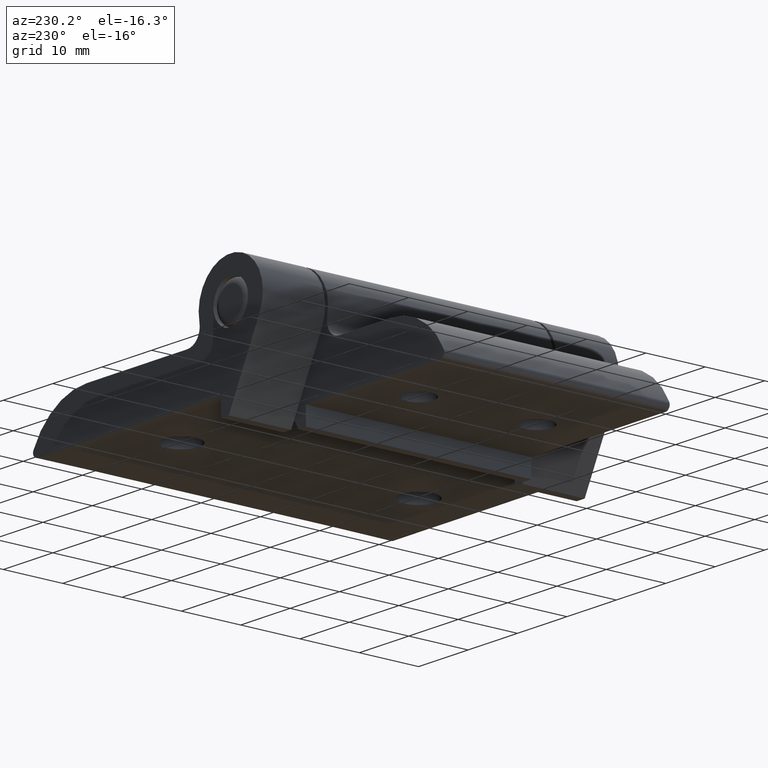
[diagram: clean part render]
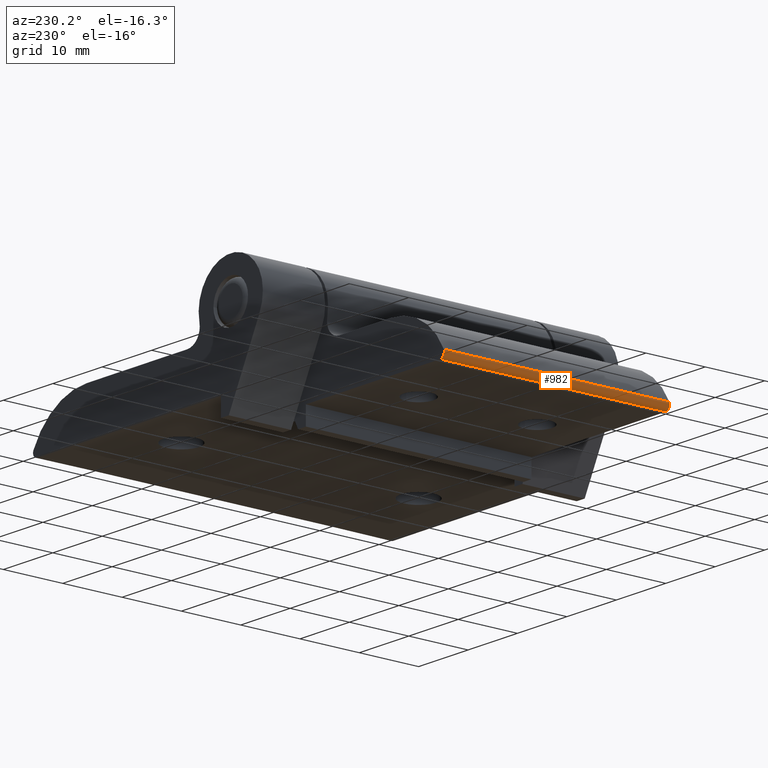
[diagram: same view with one face highlighted and labeled with its STEP entity id]
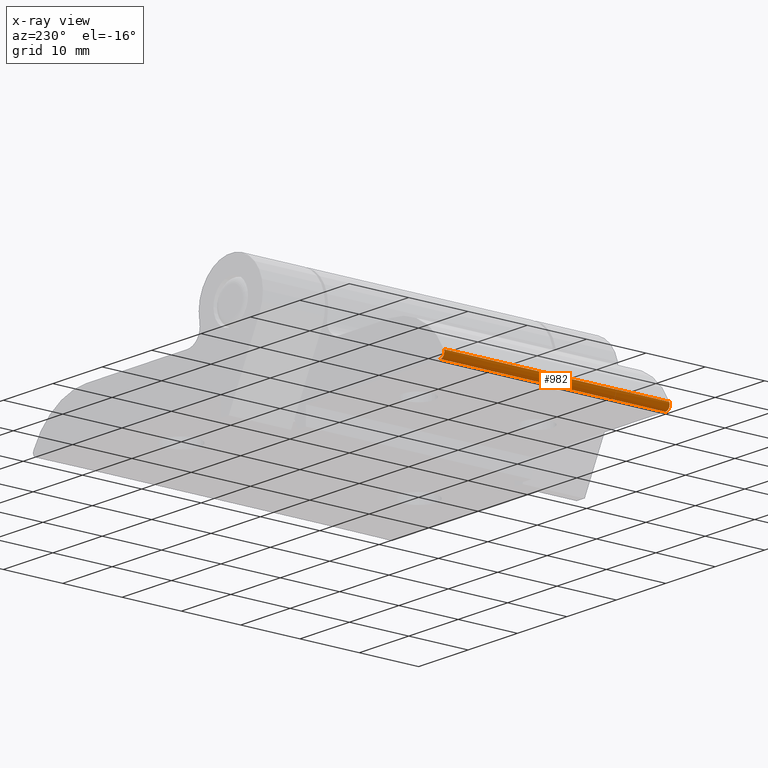
[diagram: x-ray of the same camera — body ghosted, the highlighted face saturated]
A machine part, auxiliary view. The second image highlights one B-rep face of the part: STEP entity #982.
The next image is the same camera in x-ray: the body ghosted, the highlighted face saturated — about 0% of this face is hidden behind the body in this view.
In plain terms, the highlighted face is a freeform B-spline surface patch.
Its self-contained STEP definition (entity closure, byte-faithful):
#43=B_SPLINE_CURVE_WITH_KNOTS('',3,(#1789,#1790,#1791,#1792,#1793,#1794),
 .UNSPECIFIED.,.F.,.F.,(4,1,1,4),(0.22820234633416,0.285714285714286,0.571428571428571,
1.),.UNSPECIFIED.);
#44=B_SPLINE_CURVE_WITH_KNOTS('',3,(#1796,#1797,#1798,#1799),
 .UNSPECIFIED.,.F.,.F.,(4,4),(-3.8,0.),.UNSPECIFIED.);
#45=B_SPLINE_CURVE_WITH_KNOTS('',3,(#1801,#1802,#1803,#1804,#1805,#1806),
 .UNSPECIFIED.,.F.,.F.,(4,1,1,4),(-1.,-0.571428571428571,-0.285714285714286,
-0.228202346334165),.UNSPECIFIED.);
#46=B_SPLINE_CURVE_WITH_KNOTS('',3,(#1808,#1809,#1810,#1811),
 .UNSPECIFIED.,.F.,.F.,(4,4),(-0.228202346334165,0.),.UNSPECIFIED.);
#47=B_SPLINE_CURVE_WITH_KNOTS('',3,(#1813,#1814,#1815,#1816),
 .UNSPECIFIED.,.F.,.F.,(4,4),(0.,3.8),.UNSPECIFIED.);
#48=B_SPLINE_CURVE_WITH_KNOTS('',3,(#1817,#1818,#1819,#1820),
 .UNSPECIFIED.,.F.,.F.,(4,4),(0.,0.22820234633416),.UNSPECIFIED.);
#50=B_SPLINE_SURFACE_WITH_KNOTS('',3,3,((#1763,#1764,#1765,#1766),(#1767,
#1768,#1769,#1770),(#1771,#1772,#1773,#1774),(#1775,#1776,#1777,#1778),
(#1779,#1780,#1781,#1782),(#1783,#1784,#1785,#1786)),.UNSPECIFIED.,.F.,
 .F.,.F.,(4,1,1,4),(4,4),(0.,0.285714285714286,0.571428571428571,1.),(0.,
3.8),.UNSPECIFIED.);
#139=FACE_OUTER_BOUND('',#196,.T.);
#196=EDGE_LOOP('',(#856,#857,#858,#859,#860,#861));
#488=VERTEX_POINT('',#1787);
#489=VERTEX_POINT('',#1788);
#490=VERTEX_POINT('',#1795);
#491=VERTEX_POINT('',#1800);
#492=VERTEX_POINT('',#1807);
#493=VERTEX_POINT('',#1812);
#619=EDGE_CURVE('',#488,#489,#43,.T.);
#620=EDGE_CURVE('',#489,#490,#44,.T.);
#621=EDGE_CURVE('',#490,#491,#45,.T.);
#622=EDGE_CURVE('',#491,#492,#46,.T.);
#623=EDGE_CURVE('',#492,#493,#47,.T.);
#624=EDGE_CURVE('',#493,#488,#48,.T.);
#856=ORIENTED_EDGE('',*,*,#619,.T.);
#857=ORIENTED_EDGE('',*,*,#620,.T.);
#858=ORIENTED_EDGE('',*,*,#621,.T.);
#859=ORIENTED_EDGE('',*,*,#622,.T.);
#860=ORIENTED_EDGE('',*,*,#623,.T.);
#861=ORIENTED_EDGE('',*,*,#624,.T.);
#982=ADVANCED_FACE('',(#139),#50,.F.);
#1763=CARTESIAN_POINT('Ctrl Pts',(29.9140261061395,19.,-11.1248543994776));
#1764=CARTESIAN_POINT('Ctrl Pts',(29.9140261061395,6.33333333333334,-11.1248543994776));
#1765=CARTESIAN_POINT('Ctrl Pts',(29.9140261061395,-6.33333333333334,-11.1248543994776));
#1766=CARTESIAN_POINT('Ctrl Pts',(29.9140261061395,-19.,-11.1248543994776));
#1767=CARTESIAN_POINT('Ctrl Pts',(29.9844922625149,19.,-11.2655053740222));
#1768=CARTESIAN_POINT('Ctrl Pts',(29.9844922625149,6.33333333333334,-11.2655053740222));
#1769=CARTESIAN_POINT('Ctrl Pts',(29.9844922625149,-6.33333333333334,-11.2655053740222));
#1770=CARTESIAN_POINT('Ctrl Pts',(29.9844922625149,-19.,-11.2655053740222));
#1771=CARTESIAN_POINT('Ctrl Pts',(30.0407793273985,19.,-11.5879475011584));
#1772=CARTESIAN_POINT('Ctrl Pts',(30.0407793273985,6.33333333333333,-11.5879475011584));
#1773=CARTESIAN_POINT('Ctrl Pts',(30.0407793273985,-6.33333333333333,-11.5879475011584));
#1774=CARTESIAN_POINT('Ctrl Pts',(30.0407793273985,-19.,-11.5879475011584));
#1775=CARTESIAN_POINT('Ctrl Pts',(29.8136087726109,19.,-12.1167175626109));
#1776=CARTESIAN_POINT('Ctrl Pts',(29.8136087726109,6.33333333333335,-12.1167175626109));
#1777=CARTESIAN_POINT('Ctrl Pts',(29.8136087726109,-6.33333333333335,-12.1167175626109));
#1778=CARTESIAN_POINT('Ctrl Pts',(29.8136087726109,-19.,-12.1167175626109));
#1779=CARTESIAN_POINT('Ctrl Pts',(29.4243687454637,19.,-12.3));
#1780=CARTESIAN_POINT('Ctrl Pts',(29.4243687454637,6.33333333333334,-12.3));
#1781=CARTESIAN_POINT('Ctrl Pts',(29.4243687454637,-6.33333333333334,-12.3));
#1782=CARTESIAN_POINT('Ctrl Pts',(29.4243687454637,-19.,-12.3));
#1783=CARTESIAN_POINT('Ctrl Pts',(29.1883954511527,19.,-12.3));
#1784=CARTESIAN_POINT('Ctrl Pts',(29.1883954511527,6.33333333333334,-12.3));
#1785=CARTESIAN_POINT('Ctrl Pts',(29.1883954511527,-6.33333333333334,-12.3));
#1786=CARTESIAN_POINT('Ctrl Pts',(29.1883954511527,-19.,-12.3));
#1787=CARTESIAN_POINT('',(30.,-19.,-11.4883954511528));
#1788=CARTESIAN_POINT('',(29.1883954511527,-19.,-12.3));
#1789=CARTESIAN_POINT('Ctrl Pts',(29.9997335155533,-19.,-11.4881735629194));
#1790=CARTESIAN_POINT('Ctrl Pts',(29.999769476235,-19.,-11.5198069744592));
#1791=CARTESIAN_POINT('Ctrl Pts',(29.9889384737779,-19.,-11.7086140698532));
#1792=CARTESIAN_POINT('Ctrl Pts',(29.8136087726109,-19.,-12.1167175626109));
#1793=CARTESIAN_POINT('Ctrl Pts',(29.4243687454637,-19.,-12.3));
#1794=CARTESIAN_POINT('Ctrl Pts',(29.1883954511527,-19.,-12.3));
#1795=CARTESIAN_POINT('',(29.1883954511527,19.,-12.3));
#1796=CARTESIAN_POINT('Ctrl Pts',(29.1883954511527,-19.,-12.3));
#1797=CARTESIAN_POINT('Ctrl Pts',(29.1883954511527,-6.33333333333334,-12.3));
#1798=CARTESIAN_POINT('Ctrl Pts',(29.1883954511527,6.33333333333334,-12.3));
#1799=CARTESIAN_POINT('Ctrl Pts',(29.1883954511527,19.,-12.3));
#1800=CARTESIAN_POINT('',(30.,19.,-11.4883954511528));
#1801=CARTESIAN_POINT('Ctrl Pts',(29.1883954511527,19.,-12.3));
#1802=CARTESIAN_POINT('Ctrl Pts',(29.4243687454637,19.,-12.3));
#1803=CARTESIAN_POINT('Ctrl Pts',(29.8136087726109,19.,-12.1167175626109));
#1804=CARTESIAN_POINT('Ctrl Pts',(29.9889384737779,19.,-11.7086140698532));
#1805=CARTESIAN_POINT('Ctrl Pts',(29.999769476235,19.,-11.5198069744592));
#1806=CARTESIAN_POINT('Ctrl Pts',(29.9997335155533,19.,-11.4881735629194));
#1807=CARTESIAN_POINT('',(29.9140261061395,19.,-11.1248543994776));
#1808=CARTESIAN_POINT('Ctrl Pts',(29.9997335155533,19.,-11.4881735629194));
#1809=CARTESIAN_POINT('Ctrl Pts',(29.9995908267126,19.,-11.3626549521101));
#1810=CARTESIAN_POINT('Ctrl Pts',(29.9703080039166,19.,-11.237193487896));
#1811=CARTESIAN_POINT('Ctrl Pts',(29.9140261061395,19.,-11.1248543994776));
#1812=CARTESIAN_POINT('',(29.9140261061395,-19.,-11.1248543994776));
#1813=CARTESIAN_POINT('Ctrl Pts',(29.9140261061395,19.,-11.1248543994776));
#1814=CARTESIAN_POINT('Ctrl Pts',(29.9140261061395,6.33333333333334,-11.1248543994776));
#1815=CARTESIAN_POINT('Ctrl Pts',(29.9140261061395,-6.33333333333334,-11.1248543994776));
#1816=CARTESIAN_POINT('Ctrl Pts',(29.9140261061395,-19.,-11.1248543994776));
#1817=CARTESIAN_POINT('Ctrl Pts',(29.9140261061395,-19.,-11.1248543994776));
#1818=CARTESIAN_POINT('Ctrl Pts',(29.9703080039166,-19.,-11.237193487896));
#1819=CARTESIAN_POINT('Ctrl Pts',(29.9995908267126,-19.,-11.3626549521101));
#1820=CARTESIAN_POINT('Ctrl Pts',(29.9997335155533,-19.,-11.4881735629194));